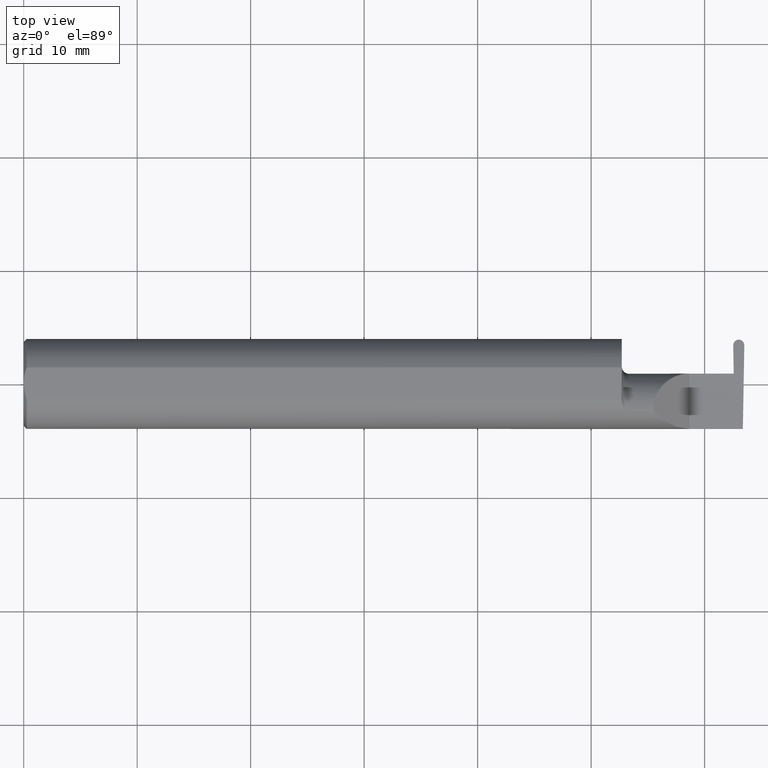
[diagram: clean part render]
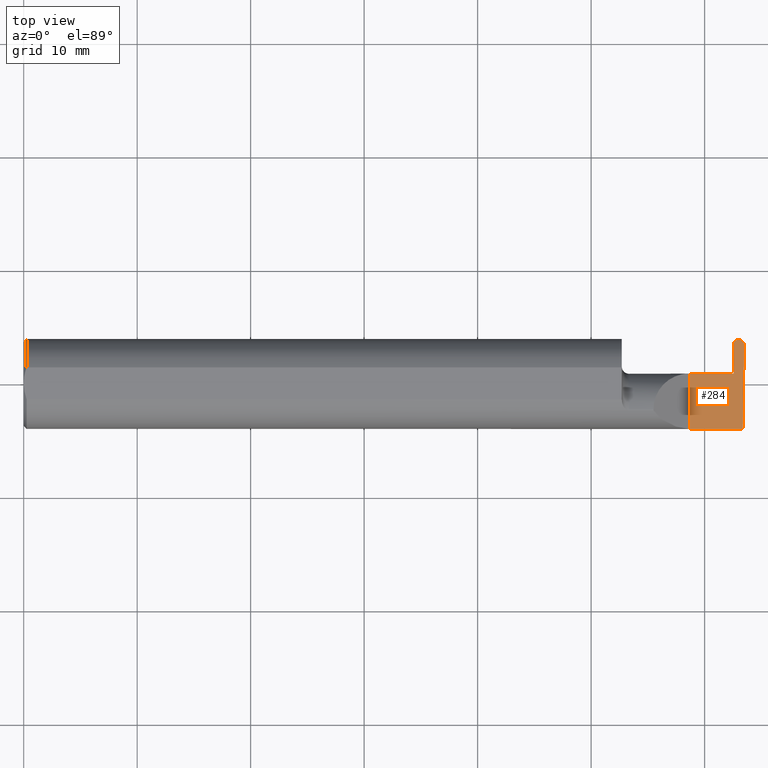
[diagram: same view with one face highlighted and labeled with its STEP entity id]
A machine part, top view. The second image highlights one B-rep face of the part: STEP entity #284.
In plain terms, the highlighted planar face has unit normal (-0, 0, -1).
Its self-contained STEP definition (entity closure, byte-faithful):
#5 = CARTESIAN_POINT ( 'NONE',  ( 2.499981158297549744, 0.1333832200032812054, 0.000000000000000000 ) ) ;
#10 = CARTESIAN_POINT ( 'NONE',  ( 2.480925502065933319, 0.1539000000000000090, 0.000000000000000000 ) ) ;
#14 = VECTOR ( 'NONE', #182, 39.37007874015748854 ) ;
#15 = CARTESIAN_POINT ( 'NONE',  ( 2.480925502065933319, 0.1539000000000000090, 0.000000000000000000 ) ) ;
#27 = LINE ( 'NONE', #516, #51 ) ;
#37 = VECTOR ( 'NONE', #796, 39.37007874015748143 ) ;
#51 = VECTOR ( 'NONE', #281, 39.37007874015748143 ) ;
#55 = EDGE_CURVE ( 'NONE', #427, #171, #424, .T. ) ;
#83 =( BOUNDED_CURVE ( )  B_SPLINE_CURVE ( 3, ( #705, #449, #636, #15 ),
 .UNSPECIFIED., .F., .T. ) 
 B_SPLINE_CURVE_WITH_KNOTS ( ( 4, 4 ),
 ( 1.677524580234104778, 3.253450286950880344 ),
 .UNSPECIFIED. ) 
 CURVE ( )  GEOMETRIC_REPRESENTATION_ITEM ( )  RATIONAL_B_SPLINE_CURVE ( ( 1.000000000000000000, 0.8035272986452582922, 0.8035272986452582922, 1.000000000000000000 ) ) 
 REPRESENTATION_ITEM ( '' )  );
#86 = DIRECTION ( 'NONE',  ( -1.224646799147353947E-16, 0.000000000000000000, -1.000000000000000000 ) ) ;
#91 = VERTEX_POINT ( 'NONE', #419 ) ;
#102 = CARTESIAN_POINT ( 'NONE',  ( -3.937007874019685528E-05, 0.1539000000000000090, 0.000000000000000000 ) ) ;
#108 = ORIENTED_EDGE ( 'NONE', *, *, #617, .T. ) ;
#111 = ORIENTED_EDGE ( 'NONE', *, *, #491, .F. ) ;
#112 = ORIENTED_EDGE ( 'NONE', *, *, #596, .F. ) ;
#133 = CARTESIAN_POINT ( 'NONE',  ( 2.463182057637018030, 0.03590000000000000135, 0.000000000000000000 ) ) ;
#134 =( BOUNDED_CURVE ( )  B_SPLINE_CURVE ( 3, ( #799, #747, #190, #435 ),
 .UNSPECIFIED., .F., .T. ) 
 B_SPLINE_CURVE_WITH_KNOTS ( ( 4, 4 ),
 ( 6.171327673818470139, 7.747253380535275014 ),
 .UNSPECIFIED. ) 
 CURVE ( )  GEOMETRIC_REPRESENTATION_ITEM ( )  RATIONAL_B_SPLINE_CURVE ( ( 1.000000000000000000, 0.8035272986452512978, 0.8035272986452512978, 1.000000000000000000 ) ) 
 REPRESENTATION_ITEM ( '' )  );
#139 = CARTESIAN_POINT ( 'NONE',  ( 2.480536137934067575, 0.1539000000000000090, 0.000000000000000000 ) ) ;
#149 = DIRECTION ( 'NONE',  ( -1.000000000000000000, 0.000000000000000000, 1.224646799147353947E-16 ) ) ;
#159 = VECTOR ( 'NONE', #479, 39.37007874015748143 ) ;
#171 = VERTEX_POINT ( 'NONE', #566 ) ;
#173 = VECTOR ( 'NONE', #631, 39.37007874015748143 ) ;
#182 = DIRECTION ( 'NONE',  ( -0.01745240643727553193, 0.9998476951563912696, -0.000000000000000000 ) ) ;
#190 = CARTESIAN_POINT ( 'NONE',  ( 2.461270922331974642, 0.1453888682971902213, 2.390809088810166648E-18 ) ) ;
#226 = CARTESIAN_POINT ( 'NONE',  ( 2.500000000000000000, -0.2500000000000000555, 0.000000000000000000 ) ) ;
#259 = EDGE_LOOP ( 'NONE', ( #111, #108, #112, #265, #510, #540, #720, #571, #501 ) ) ;
#265 = ORIENTED_EDGE ( 'NONE', *, *, #328, .F. ) ;
#276 = PLANE ( 'NONE',  #741 ) ;
#281 = DIRECTION ( 'NONE',  ( 1.000000000000000000, 7.255572736540064728E-15, -0.000000000000000000 ) ) ;
#282 = VERTEX_POINT ( 'NONE', #645 ) ;
#284 = ADVANCED_FACE ( 'NONE', ( #344 ), #276, .F. ) ;
#296 = DIRECTION ( 'NONE',  ( 1.000000000000000000, -0.000000000000000000, -0.000000000000000000 ) ) ;
#308 = CARTESIAN_POINT ( 'NONE',  ( 2.310000000000000053, -0.2500000000000000555, 2.326828918379970872E-17 ) ) ;
#321 = LINE ( 'NONE', #380, #173 ) ;
#328 = EDGE_CURVE ( 'NONE', #282, #729, #27, .T. ) ;
#344 = FACE_OUTER_BOUND ( 'NONE', #259, .T. ) ;
#380 = CARTESIAN_POINT ( 'NONE',  ( 3.749399456654646757E-32, -0.1560999999999999333, 3.061616997868383634E-16 ) ) ;
#409 = EDGE_CURVE ( 'NONE', #687, #91, #785, .T. ) ;
#419 = CARTESIAN_POINT ( 'NONE',  ( 2.494928209896765114, -0.1560999999999999888, 0.000000000000000000 ) ) ;
#424 = LINE ( 'NONE', #308, #159 ) ;
#427 = VERTEX_POINT ( 'NONE', #733 ) ;
#428 = LINE ( 'NONE', #736, #14 ) ;
#432 = VECTOR ( 'NONE', #296, 39.37007874015748143 ) ;
#435 = CARTESIAN_POINT ( 'NONE',  ( 2.461480481702449818, 0.1333832200032812332, 0.000000000000000000 ) ) ;
#442 = CARTESIAN_POINT ( 'NONE',  ( 2.461480481702449818, 0.1333832200032812332, 0.000000000000000000 ) ) ;
#449 = CARTESIAN_POINT ( 'NONE',  ( 2.500190717668024920, 0.1453888682971899160, -2.390809088810165492E-18 ) ) ;
#468 = VECTOR ( 'NONE', #552, 39.37007874015748143 ) ;
#479 = DIRECTION ( 'NONE',  ( -0.000000000000000000, 1.000000000000000000, -0.000000000000000000 ) ) ;
#491 = EDGE_CURVE ( 'NONE', #790, #567, #722, .T. ) ;
#501 = ORIENTED_EDGE ( 'NONE', *, *, #657, .T. ) ;
#510 = ORIENTED_EDGE ( 'NONE', *, *, #622, .F. ) ;
#516 = CARTESIAN_POINT ( 'NONE',  ( 2.463182057637018030, 0.03590000000000000135, 0.000000000000000000 ) ) ;
#540 = ORIENTED_EDGE ( 'NONE', *, *, #55, .F. ) ;
#552 = DIRECTION ( 'NONE',  ( 1.000000000000000000, 0.000000000000000000, 0.000000000000000000 ) ) ;
#565 = CARTESIAN_POINT ( 'NONE',  ( 2.075000000000000178, 0.03590000000000000135, 5.204748896376251932E-17 ) ) ;
#566 = CARTESIAN_POINT ( 'NONE',  ( 2.310000000000000053, 0.03590000000000000135, 5.204748896376251932E-17 ) ) ;
#567 = VERTEX_POINT ( 'NONE', #10 ) ;
#571 = ORIENTED_EDGE ( 'NONE', *, *, #409, .F. ) ;
#589 = EDGE_CURVE ( 'NONE', #91, #427, #321, .T. ) ;
#596 = EDGE_CURVE ( 'NONE', #729, #721, #428, .T. ) ;
#602 = CARTESIAN_POINT ( 'NONE',  ( 2.499997065210553426, 0.1342945264389270033, 0.000000000000000000 ) ) ;
#617 = EDGE_CURVE ( 'NONE', #790, #721, #134, .T. ) ;
#622 = EDGE_CURVE ( 'NONE', #171, #282, #681, .T. ) ;
#631 = DIRECTION ( 'NONE',  ( -1.000000000000000000, -0.000000000000000000, -0.000000000000000000 ) ) ;
#636 = CARTESIAN_POINT ( 'NONE',  ( 2.492285715036194116, 0.1538999999999999257, -1.422725471777829947E-18 ) ) ;
#645 = CARTESIAN_POINT ( 'NONE',  ( 2.456122359975489111, 0.03589999999999995278, 0.000000000000000000 ) ) ;
#657 = EDGE_CURVE ( 'NONE', #687, #567, #83, .T. ) ;
#681 = LINE ( 'NONE', #565, #468 ) ;
#687 = VERTEX_POINT ( 'NONE', #5 ) ;
#705 = CARTESIAN_POINT ( 'NONE',  ( 2.499981158297549744, 0.1333832200032812054, 0.000000000000000000 ) ) ;
#720 = ORIENTED_EDGE ( 'NONE', *, *, #589, .F. ) ;
#721 = VERTEX_POINT ( 'NONE', #442 ) ;
#722 = LINE ( 'NONE', #102, #432 ) ;
#729 = VERTEX_POINT ( 'NONE', #133 ) ;
#733 = CARTESIAN_POINT ( 'NONE',  ( 2.310000000000000053, -0.1560999999999999888, 2.326828918379970872E-17 ) ) ;
#736 = CARTESIAN_POINT ( 'NONE',  ( 2.461464574789446136, 0.1342945264389270033, 0.000000000000000000 ) ) ;
#741 = AXIS2_PLACEMENT_3D ( 'NONE', #226, #86, #149 ) ;
#747 = CARTESIAN_POINT ( 'NONE',  ( 2.469175924963806334, 0.1539000000000003143, 1.422725471777793932E-18 ) ) ;
#785 = LINE ( 'NONE', #602, #37 ) ;
#790 = VERTEX_POINT ( 'NONE', #139 ) ;
#796 = DIRECTION ( 'NONE',  ( -0.01745240643727612520, -0.9998476951563912696, 0.000000000000000000 ) ) ;
#799 = CARTESIAN_POINT ( 'NONE',  ( 2.480536137934067575, 0.1539000000000000090, 0.000000000000000000 ) ) ;